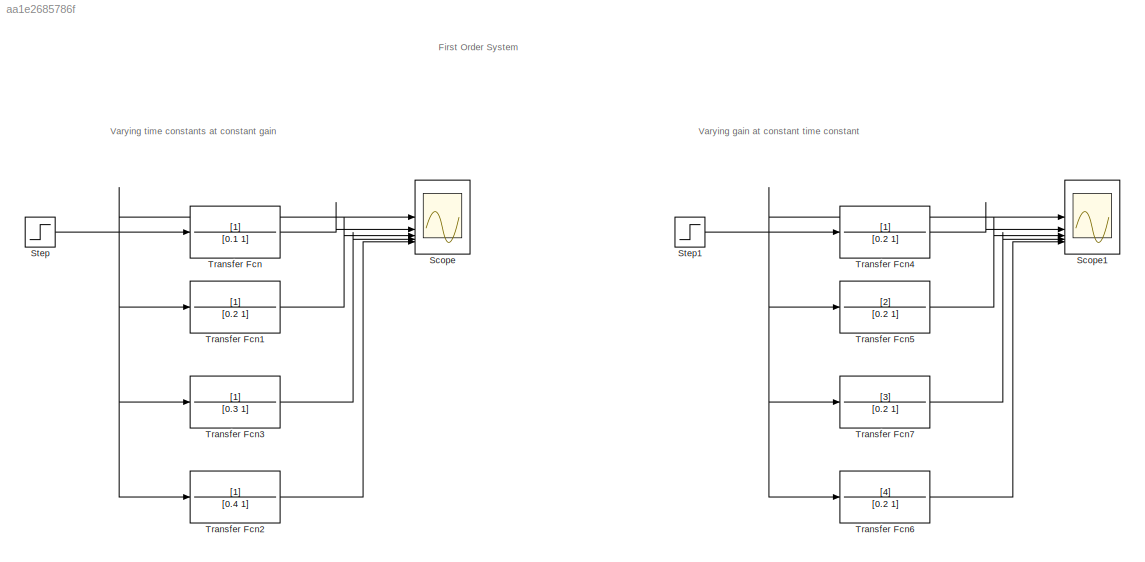
MODEL slx_aa1e2685786f
KIND model
CONFIG AbsTol = auto
CONFIG EnableMultiTasking = off
CONFIG FixedStep = auto
CONFIG MaxStep = auto
CONFIG MinStep = auto
CONFIG RelTol = 1e-3
CONFIG SampleTimeConstraint = Unconstrained
CONFIG SolverName = VariableStepAuto
CONFIG StartTime = 0.0
CONFIG StopTime = 10.0
BLOCK [Scope] Scope
  Floating = off
  NumInputPorts = 5
  ScopeSpecificationString = Simulink.scopes.TimeScopeBlockCfg('CurrentConfiguration', extmgr.ConfigurationSet(extmgr.Configuration('Core','General UI',true),extmgr.Configuration('Core','Source UI',true),extmgr.Configuration('Sources','WiredSimulink',true),extmgr.Configuration('Visuals','Time Domain',true,'SerializedDisplays',{struct('MinYLimReal','-0.125','MaxYLimReal','1.125','YLabelReal','','MinYLimMag','0.00000','MaxYLimM...<+1408ch>
BLOCK [Scope] Scope1
  Floating = off
  NumInputPorts = 5
  ScopeSpecificationString = Simulink.scopes.TimeScopeBlockCfg('CurrentConfiguration', extmgr.ConfigurationSet(extmgr.Configuration('Core','General UI',true),extmgr.Configuration('Core','Source UI',true),extmgr.Configuration('Sources','WiredSimulink',true,'DataLoggingVariableName','ScopeData1'),extmgr.Configuration('Visuals','Time Domain',true,'SerializedDisplays',{struct('MinYLimReal','-0.5','MaxYLimReal','4.5','YLabelReal',...<+1437ch>
BLOCK [Step] Step
  SampleTime = 0
BLOCK [Step] Step1
  SampleTime = 0
BLOCK [TransferFcn] Transfer Fcn
  Denominator = [0.1 1]
BLOCK [TransferFcn] Transfer Fcn1
  Denominator = [0.2 1]
BLOCK [TransferFcn] Transfer Fcn2
  Denominator = [0.4 1]
BLOCK [TransferFcn] Transfer Fcn3
  Denominator = [0.3 1]
BLOCK [TransferFcn] Transfer Fcn4
  Denominator = [0.2 1]
BLOCK [TransferFcn] Transfer Fcn5
  Denominator = [0.2 1]
  Numerator = [2]
BLOCK [TransferFcn] Transfer Fcn6
  Denominator = [0.2 1]
  Numerator = [4]
BLOCK [TransferFcn] Transfer Fcn7
  Denominator = [0.2 1]
  Numerator = [3]
ANNOTATION (root): Varying gain at constant time constant
ANNOTATION (root): Varying time constants at constant gain
ANNOTATION (root): First Order System
NET Step1:1 -> Scope1:1, Transfer Fcn4:1, Transfer Fcn5:1, Transfer Fcn6:1, Transfer Fcn7:1
NET Step:1 -> Scope:1, Transfer Fcn1:1, Transfer Fcn2:1, Transfer Fcn3:1, Transfer Fcn:1
LINE Transfer Fcn1:1 -> Scope:3
LINE Transfer Fcn2:1 -> Scope:5
LINE Transfer Fcn3:1 -> Scope:4
LINE Transfer Fcn4:1 -> Scope1:2
LINE Transfer Fcn5:1 -> Scope1:3
LINE Transfer Fcn6:1 -> Scope1:5
LINE Transfer Fcn7:1 -> Scope1:4
LINE Transfer Fcn:1 -> Scope:2
note: NET lines group one-source signal fan-out (src -> all destinations, sorted); 1:1 wires keep LINE
